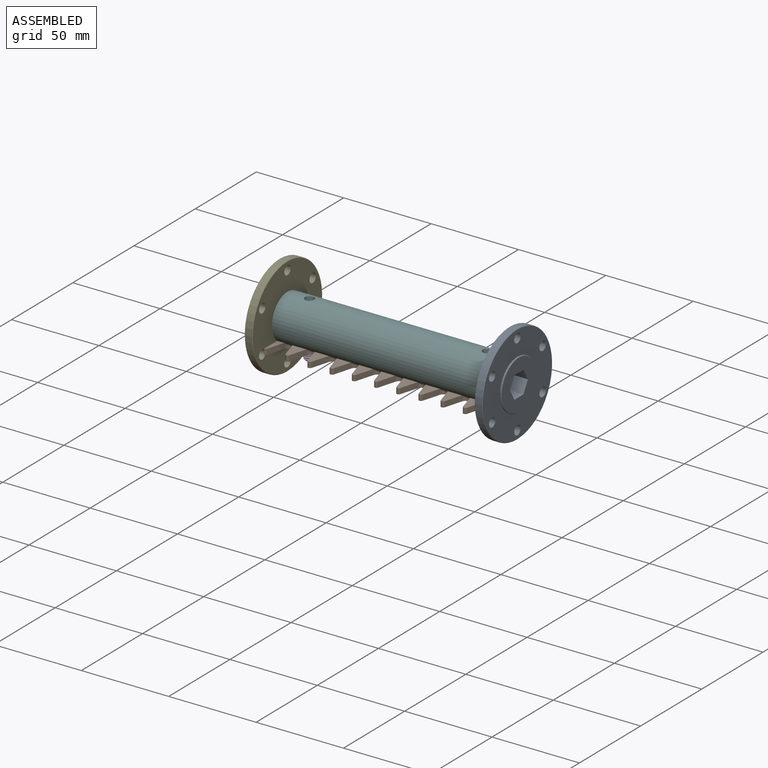
[diagram: assembled view]
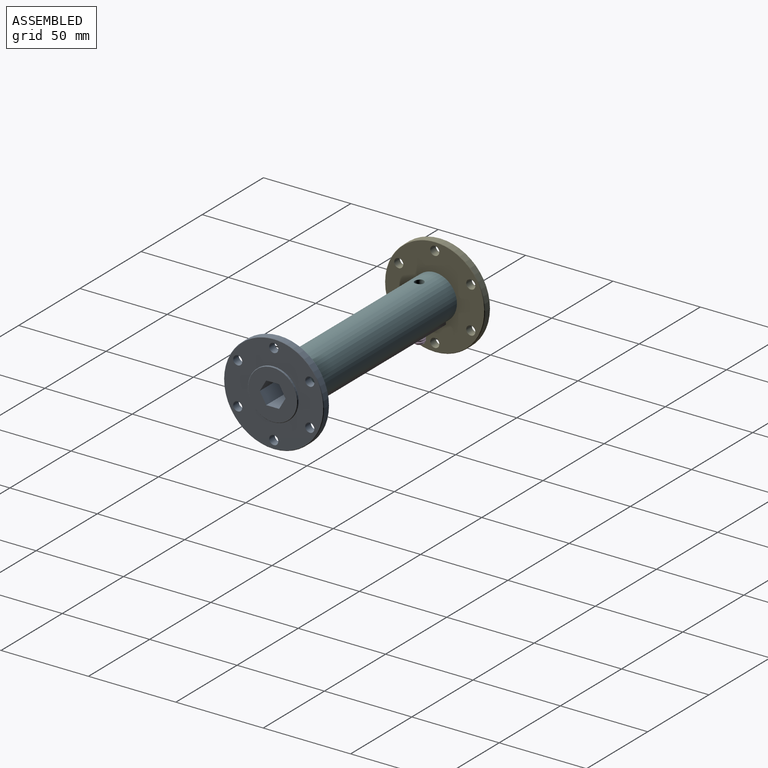
[diagram: assembled view, second angle]
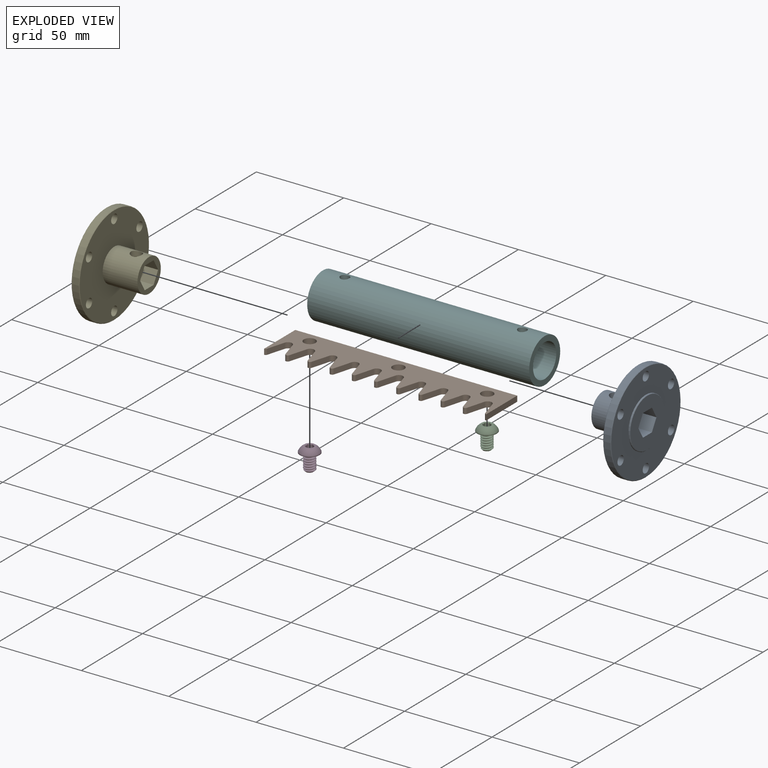
[diagram: exploded view]
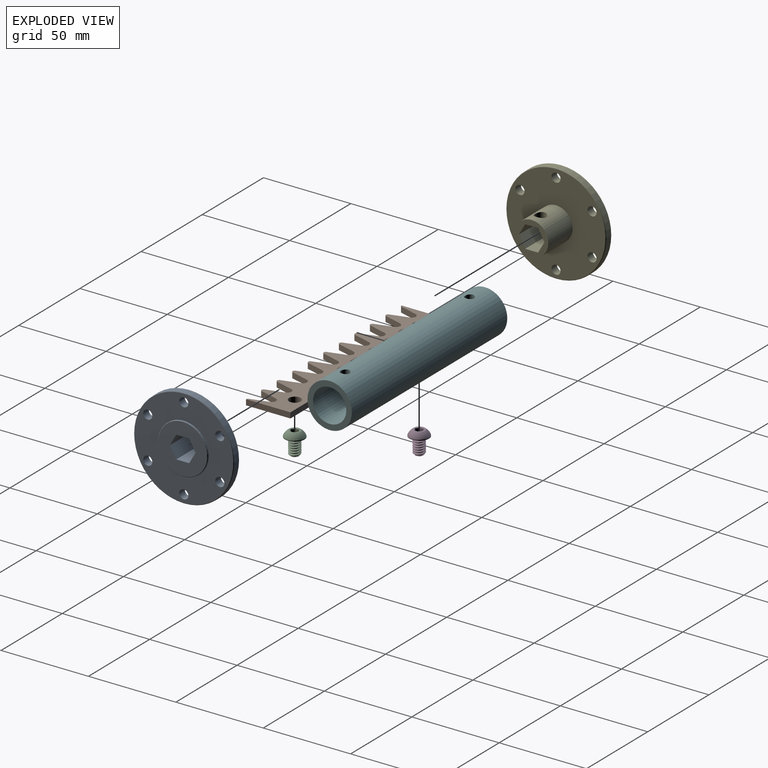
[diagram: exploded view, second angle]
ASSEMBLY  parts=6 mates=7
PART A: 23 faces, bbox 25.4x57.2x57.2 mm
  f0: cylinder r=9.53mm len=19.94mm, axis (-1,0,0), area 1161.2mm2, adj f1,f20,f22
  f1: plane 19.05x19.05mm, normal (1,0,0), area 144.2mm2, adj f0,f14,f15,f16,f17,f18,f19
  f2: cone r=28.57mm half-angle=45deg, axis (-1,0,0), area 64.2mm2, adj f12,f20
  f3: cone r=28.32mm half-angle=45deg, axis (1,0,0), area 64.2mm2, adj f12,f21
  f4: cone r=14.03mm half-angle=45deg, axis (1,0,0), area 32mm2, adj f5,f13
  f5: cylinder r=14.29mm len=28.58mm, axis (1,0,0), area 57mm2, adj f4,f21
  f6: cylinder r=2.59mm len=5.18mm, axis (1,0,0), area 74.4mm2, adj f20,f21
  f7: cylinder r=2.59mm len=5.18mm, axis (1,0,0), area 74.4mm2, adj f20,f21
  f8: cylinder r=2.59mm len=5.18mm, axis (1,0,0), area 74.4mm2, adj f20,f21
  f9: cylinder r=2.59mm len=5.18mm, axis (1,0,0), area 74.4mm2, adj f20,f21
  f10: cylinder r=2.59mm len=5.18mm, axis (1,0,0), area 74.4mm2, adj f20,f21
  f11: cylinder r=2.59mm len=5.18mm, axis (1,0,0), area 74.4mm2, adj f20,f21
  f12: cylinder r=28.57mm len=57.15mm, axis (-1,0,0), area 729.7mm2, adj f2,f3
  f13: plane 28.07x28.07mm, normal (-1,0,0), area 477.9mm2, adj f4,f14,f15,f16,f17,f18,f19
  f14: plane 25.4x6.38mm, normal (0,0.87,-0.5), area 187mm2, adj f1,f13,f15,f19
  f15: plane 25.4x7.36mm, normal (0,0,-1), area 155.3mm2, adj f1,f13,f14,f16,f22
  f16: plane 25.4x6.38mm, normal (0,-0.87,-0.5), area 187mm2, adj f1,f13,f15,f17
  f17: plane 25.4x6.38mm, normal (0,-0.87,0.5), area 187mm2, adj f1,f13,f16,f18
  f18: plane 25.4x7.36mm, normal (0,0,1), area 187mm2, adj f1,f13,f17,f19
  f19: plane 25.4x6.38mm, normal (0,0.87,0.5), area 187mm2, adj f1,f13,f14,f18
  f20: plane 56.64x56.64mm, normal (1,0,0), area 2108.3mm2, adj f0,f2,f6,f7,f8,f9,f10,f11
  f21: plane 56.64x56.64mm, normal (-1,0,0), area 1752mm2, adj f3,f5,f6,f7,f8,f9,f10,f11
  f22: cylinder r=3.17mm len=6.35mm, axis (0,0,1), area 57.4mm2, adj f0,f15
PART B: 49 faces, bbox 127x25.4x3.2 mm
  f0: cylinder r=1.19mm len=3.18mm, axis (0,0,-1), area 9.8mm2, adj f1,f43,f44,f45
  f1: plane 10.12x3.18mm, normal (0.96,-0.28,0), area 33.4mm2, adj f0,f2,f44,f45
  f2: cylinder r=2.38mm len=4.58mm, axis (0,0,-1), area 19.5mm2, adj f1,f3,f44,f45
  f3: plane 10.12x3.18mm, normal (-0.96,-0.28,0), area 33.4mm2, adj f2,f4,f44,f45
  f4: cylinder r=1.19mm len=3.18mm, axis (0,0,-1), area 9.8mm2, adj f3,f5,f44,f45
  f5: plane 10.12x3.18mm, normal (0.96,-0.28,0), area 33.4mm2, adj f4,f6,f44,f45
  f6: cylinder r=2.38mm len=4.58mm, axis (0,0,-1), area 19.5mm2, adj f5,f7,f44,f45
  f7: plane 10.12x3.18mm, normal (-0.96,-0.28,0), area 33.4mm2, adj f6,f8,f44,f45
  f8: cylinder r=1.19mm len=3.18mm, axis (0,0,-1), area 9.8mm2, adj f7,f9,f44,f45
  f9: plane 10.12x3.18mm, normal (0.96,-0.28,0), area 33.4mm2, adj f8,f10,f44,f45
  f10: cylinder r=2.38mm len=4.58mm, axis (0,0,-1), area 19.5mm2, adj f9,f11,f44,f45
  f11: plane 10.12x3.18mm, normal (-0.96,-0.28,0), area 33.4mm2, adj f10,f12,f44,f45
  f12: cylinder r=1.19mm len=3.18mm, axis (0,0,-1), area 9.8mm2, adj f11,f13,f44,f45
  f13: plane 10.12x3.18mm, normal (0.96,-0.28,0), area 33.4mm2, adj f12,f14,f44,f45
  f14: cylinder r=2.38mm len=4.58mm, axis (0,0,-1), area 19.5mm2, adj f13,f15,f44,f45
  f15: plane 10.12x3.18mm, normal (-0.96,-0.28,0), area 33.4mm2, adj f14,f16,f44,f45
  f16: cylinder r=1.19mm len=3.18mm, axis (0,0,-1), area 9.8mm2, adj f15,f17,f44,f45
  f17: plane 10.12x3.18mm, normal (0.96,-0.28,0), area 33.4mm2, adj f16,f18,f44,f45
  f18: cylinder r=2.38mm len=4.58mm, axis (0,0,-1), area 19.5mm2, adj f17,f19,f44,f45
  f19: plane 10.12x3.18mm, normal (-0.96,-0.28,0), area 33.4mm2, adj f18,f20,f44,f45
  f20: cylinder r=1.19mm len=3.18mm, axis (0,0,-1), area 9.8mm2, adj f19,f21,f44,f45
  f21: plane 10.12x3.18mm, normal (0.96,-0.28,0), area 33.4mm2, adj f20,f22,f44,f45
  f22: cylinder r=2.38mm len=4.58mm, axis (0,0,-1), area 19.5mm2, adj f21,f23,f44,f45
  f23: plane 10.12x3.18mm, normal (-0.96,-0.28,0), area 33.4mm2, adj f22,f24,f44,f45
  f24: cylinder r=1.19mm len=3.18mm, axis (0,0,-1), area 9.8mm2, adj f23,f25,f44,f45
  f25: plane 10.12x3.18mm, normal (0.96,-0.28,0), area 33.4mm2, adj f24,f26,f44,f45
  f26: cylinder r=2.38mm len=4.58mm, axis (0,0,-1), area 19.5mm2, adj f25,f27,f44,f45
  f27: plane 10.12x3.18mm, normal (-0.96,-0.28,0), area 33.4mm2, adj f26,f28,f44,f45
  f28: cylinder r=1.19mm len=3.18mm, axis (0,0,-1), area 9.8mm2, adj f27,f29,f44,f45
  f29: plane 10.12x3.18mm, normal (0.96,-0.28,0), area 33.4mm2, adj f28,f30,f44,f45
  f30: cylinder r=2.38mm len=4.58mm, axis (0,0,-1), area 19.5mm2, adj f29,f31,f44,f45
  f31: plane 10.12x3.18mm, normal (-0.96,-0.28,0), area 33.4mm2, adj f30,f32,f44,f45
  f32: cylinder r=1.19mm len=3.18mm, axis (0,0,-1), area 9.8mm2, adj f31,f33,f44,f45
  f33: plane 10.12x3.18mm, normal (0.96,-0.28,0), area 33.4mm2, adj f32,f34,f44,f45
  f34: cylinder r=2.38mm len=4.58mm, axis (0,0,-1), area 19.5mm2, adj f33,f35,f44,f45
  f35: plane 10.12x3.18mm, normal (-0.96,-0.28,0), area 33.4mm2, adj f34,f36,f44,f45
  f36: cylinder r=1.19mm len=3.18mm, axis (0,0,-1), area 4.9mm2, adj f35,f37,f44,f45
  f37: plane 25.4x3.18mm, normal (1,0,0), area 80.6mm2, adj f36,f38,f44,f45
  f38: plane 127x3.18mm, normal (0,1,0), area 403.2mm2, adj f37,f39,f44,f45
  f39: plane 25.4x3.18mm, normal (-1,0,0), area 80.6mm2, adj f38,f40,f44,f45
  f40: cylinder r=1.19mm len=3.18mm, axis (0,0,-1), area 4.9mm2, adj f39,f41,f44,f45
  f41: plane 10.12x3.18mm, normal (0.96,-0.28,0), area 33.4mm2, adj f40,f42,f44,f45
  f42: cylinder r=2.38mm len=4.58mm, axis (0,0,-1), area 19.5mm2, adj f41,f43,f44,f45
  f43: plane 10.12x3.18mm, normal (-0.96,-0.28,0), area 33.4mm2, adj f0,f42,f44,f45
  f44: plane 127x25.4mm, normal (0,0,1), area 2207.2mm2, adj f0,f1,f2,f3,f4,f5,f6,f7
  f45: plane 127x25.4mm, normal (0,0,-1), area 2207.2mm2, adj f0,f1,f2,f3,f4,f5,f6,f7
  f46: cylinder r=3.38mm len=6.76mm, axis (0,0,1), area 67.4mm2, adj f44,f45
  f47: cylinder r=3.38mm len=6.76mm, axis (0,0,1), area 67.4mm2, adj f44,f45
  f48: cylinder r=3.38mm len=6.76mm, axis (0,0,1), area 67.4mm2, adj f44,f45
PART C: 24 faces, bbox 12x12x15.1 mm
  f0: cone r=2.22mm half-angle=45deg, axis (0,0,1), area 9.6mm2, adj f1,f6,f7,f8,f23
  f1: cone r=2.22mm half-angle=45deg, axis (0,0,1), area 2.3mm2, adj f0,f5,f6,f8
  f2: cone r=2.29mm half-angle=45deg, axis (0,0,1), area 0.5mm2, adj f9,f17
  f3: cylinder r=5.55mm len=11.1mm, axis (0,0,1), area 17.5mm2, adj f4,f10
  f4: sphere r=5.97mm, area 107mm2, adj f3,f9
  f5: cylinder r=3.17mm len=8.57mm, axis (0,0,-1), area 21.4mm2, adj f1,f6,f8,f10
  f6: bspline ~10x6.35mm, area 116.7mm2, adj f0,f1,f5,f7,f10
  f7: bspline ~9.72x4.68mm, area 17.3mm2, adj f0,f6,f8,f10
  f8: bspline ~10.48x6.35mm, area 116.9mm2, adj f0,f1,f5,f7,f10
  f9: plane 7.1x7.1mm, normal (0,0,1), area 15.2mm2, adj f2,f4,f11,f12,f13,f14,f15
  f10: plane 11.58x11.58mm, normal (0,0,-1), area 72.5mm2, adj f3,f5,f6,f7,f8
  f11: cone r=2.29mm half-angle=45deg, axis (0,0,1), area 0mm2, adj f9,f18
  f12: cone r=2.29mm half-angle=45deg, axis (0,0,1), area 0mm2, adj f9,f19
  f13: cone r=2.29mm half-angle=45deg, axis (0,0,1), area 0mm2, adj f9,f20
  f14: cone r=2.29mm half-angle=45deg, axis (0,0,1), area 0mm2, adj f9,f21
  f15: cone r=2.29mm half-angle=45deg, axis (0,0,1), area 0mm2, adj f9,f22
  f16: plane 4.58x3.97mm, normal (0,0,1), area 13.6mm2, adj f17,f18,f19,f20,f21,f22
  f17: plane 2.57x2.51mm, normal (-1,0,0), area 4.9mm2, adj f2,f16,f18,f22
  f18: plane 3.22x2.85mm, normal (-0.5,-0.87,0), area 4.9mm2, adj f11,f16,f17,f19
  f19: plane 3.22x2.85mm, normal (0.5,-0.87,0), area 4.9mm2, adj f12,f16,f18,f20
  f20: plane 3.22x3.16mm, normal (1,0,0), area 4.9mm2, adj f13,f16,f19,f21
  f21: plane 3.22x2.85mm, normal (0.5,0.87,0), area 4.9mm2, adj f14,f16,f20,f22
  f22: plane 3.22x2.85mm, normal (-0.5,0.87,0), area 4.9mm2, adj f15,f16,f17,f21
  f23: plane 4.5x4.5mm, normal (0,0,-1), area 15.9mm2, adj f0
PART D: same geometry as C
PART E: same geometry as A
PART F: 6 faces, bbox 127x25.4x25.4 mm
  f0: cylinder r=9.53mm len=127mm, axis (-1,0,0), area 7559.3mm2, adj f2,f3,f4,f5
  f1: cylinder r=12.7mm len=127mm, axis (-1,0,0), area 10092.7mm2, adj f2,f3,f4,f5
  f2: plane 25.4x25.4mm, normal (1,0,0), area 221.7mm2, adj f0,f1
  f3: plane 25.4x25.4mm, normal (-1,0,0), area 221.7mm2, adj f0,f1
  f4: cylinder r=2.55mm len=5.11mm, axis (0,0,1), area 51.6mm2, adj f0,f1
  f5: cylinder r=2.55mm len=5.11mm, axis (0,0,1), area 51.6mm2, adj f0,f1
PLACE A rot(axis=(0,0,1),180deg) t=(163.91,-11.31,-34.93)mm
PLACE B t=(177.84,-17.66,-47.63)mm
PLACE C t=(165.09,-11.43,-41.1)mm
PLACE D t=(63.54,-11.31,-41.1)mm
PLACE E t=(64.76,-11.31,-34.93)mm
PLACE F rot(axis=(0,0,1),180deg) t=(177.84,-11.31,-34.93)mm
MATE revolute E.f0 <-> F.f0  axis (-1,0,0) through (50.84,-11.31,-34.93)mm
MATE slider F.f0 <-> A.f0  axis (1,0,0) through (177.84,-11.31,-34.93)mm
MATE planar B.f37 <-> A.f0  axis (1,0,0) through (177.84,-17.66,-46.04)mm
MATE fastened C.f10 <-> B.f48  axis (0,0,-1) through (165.14,-11.31,-44.45)mm
MATE fastened D.f2 <-> B.f46  axis (0,0,-1) through (63.54,-11.31,-44.45)mm
MATE cylindrical B.f46 <-> F.f5  axis (0,0,-1) through (63.54,-11.31,-47.63)mm
MATE cylindrical A.f22 <-> F.f4  axis (0,0,1) through (165.14,-11.31,-26.97)mm
